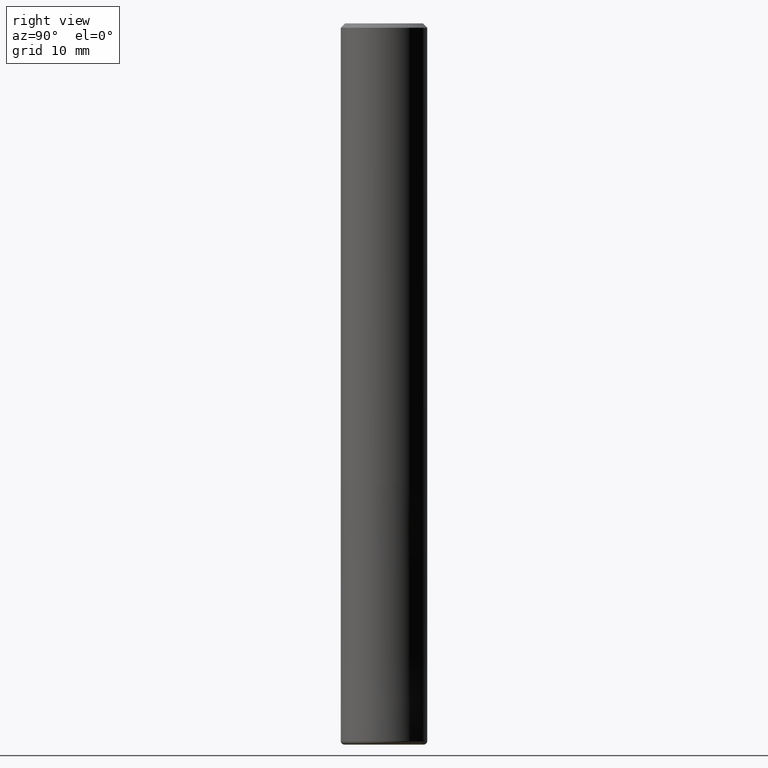
[diagram: clean part render]
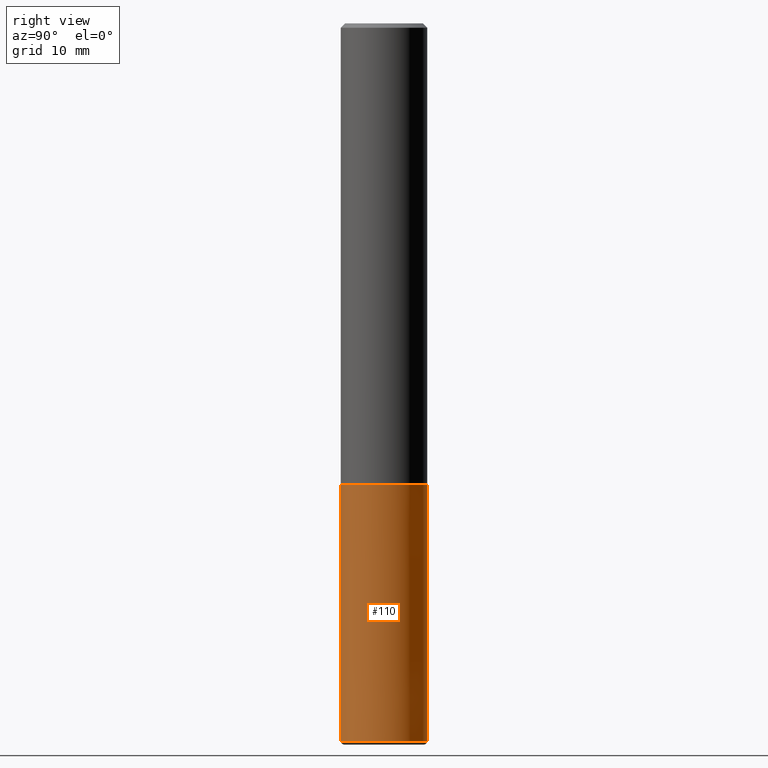
[diagram: same view with one face highlighted and labeled with its STEP entity id]
A machine part, right view. The second image highlights one B-rep face of the part: STEP entity #110.
In plain terms, the highlighted conical surface has half-angle 0 deg.
Its self-contained STEP definition (entity closure, byte-faithful):
#110=ADVANCED_FACE('',(#271),#272,.T.);
#124=EDGE_CURVE('',#206,#180,#287,.T.);
#142=EDGE_CURVE('',#206,#184,#305,.T.);
#152=EDGE_CURVE('',#184,#234,#317,.T.);
#156=EDGE_CURVE('',#234,#180,#321,.T.);
#180=VERTEX_POINT('',#348);
#184=VERTEX_POINT('',#353);
#206=VERTEX_POINT('',#377);
#234=VERTEX_POINT('',#413);
#271=FACE_OUTER_BOUND('',#445,.T.);
#272=CONICAL_SURFACE('',#446,5.99995,2.81690140843669E-006);
#287=CIRCLE('',#465,5.9999);
#305=LINE('',#494,#495);
#317=CIRCLE('',#509,6.0);
#321=LINE('',#514,#515);
#348=CARTESIAN_POINT('',(7.34751566229888E-016,-5.9999,-64.0));
#353=CARTESIAN_POINT('',(0.0,6.0,-99.5));
#377=CARTESIAN_POINT('',(0.0,5.9999,-64.0));
#413=CARTESIAN_POINT('',(7.34763812293426E-016,-6.0,-99.5));
#445=EDGE_LOOP('',(#644,#645,#646,#647));
#446=AXIS2_PLACEMENT_3D('',#648,#649,#650);
#465=AXIS2_PLACEMENT_3D('',#668,#669,#670);
#494=CARTESIAN_POINT('',(-7.34757689261658E-016,5.99995,-81.75));
#495=VECTOR('',#686,1.0);
#509=AXIS2_PLACEMENT_3D('',#706,#707,#708);
#514=CARTESIAN_POINT('',(7.34757689261657E-016,-5.99995,-81.75));
#515=VECTOR('',#709,1.0);
#644=ORIENTED_EDGE('',*,*,#142,.F.);
#645=ORIENTED_EDGE('',*,*,#124,.T.);
#646=ORIENTED_EDGE('',*,*,#156,.F.);
#647=ORIENTED_EDGE('',*,*,#152,.F.);
#648=CARTESIAN_POINT('',(0.0,0.0,-81.75));
#649=DIRECTION('',(0.0,-0.0,-1.0));
#650=DIRECTION('',(0.0,1.0,0.0));
#668=CARTESIAN_POINT('',(0.0,0.0,-64.0));
#669=DIRECTION('',(0.0,0.0,-1.0));
#670=DIRECTION('',(0.0,1.0,0.0));
#686=DIRECTION('',(-3.44959536285821E-022,2.81690140843296E-006,-0.999999999996033));
#706=CARTESIAN_POINT('',(0.0,0.0,-99.5));
#707=DIRECTION('',(0.0,0.0,-1.0));
#708=DIRECTION('',(0.0,1.0,0.0));
#709=DIRECTION('',(-3.44959536285821E-022,2.81690140843296E-006,0.999999999996033));